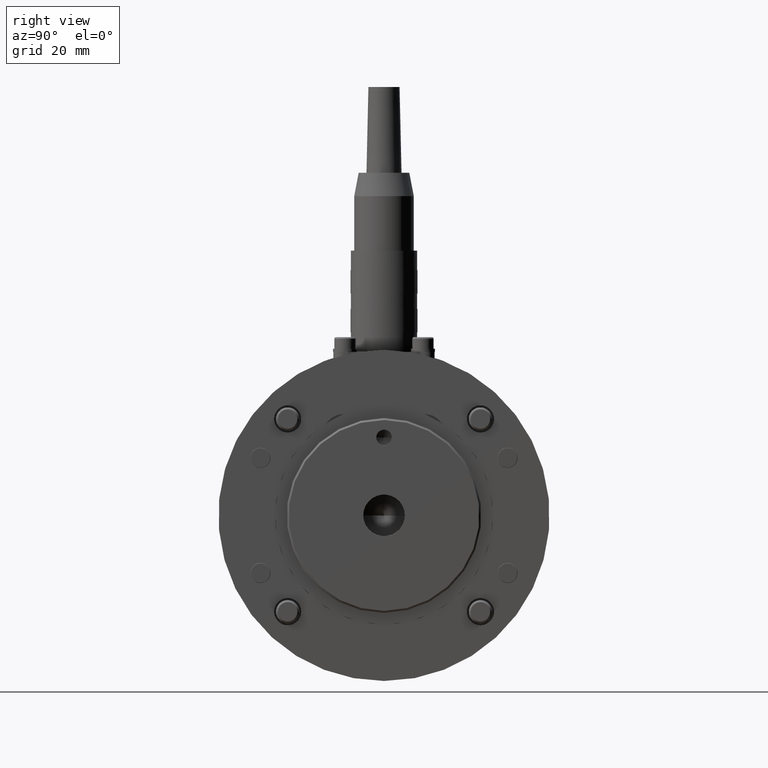
[diagram: clean part render]
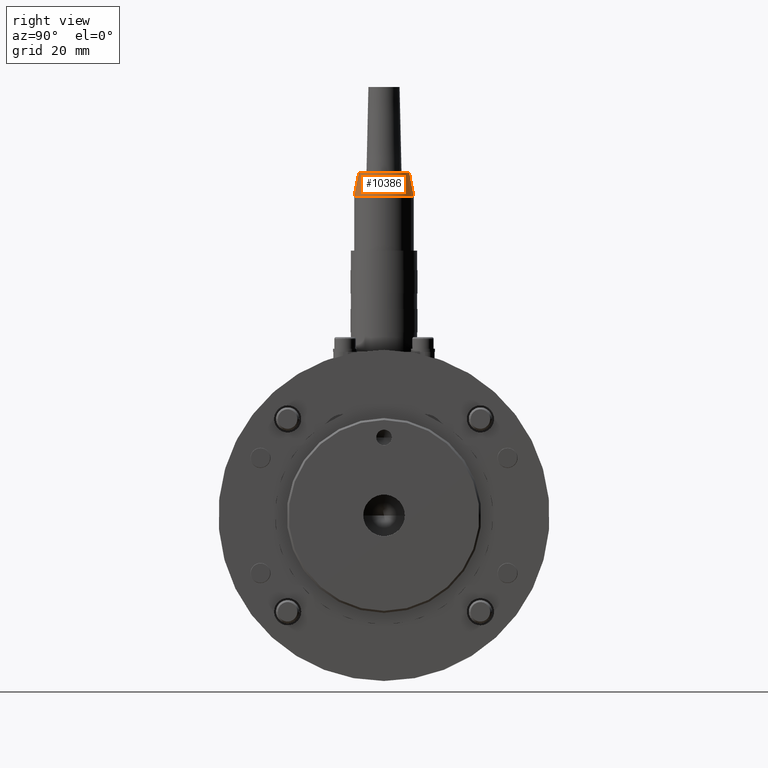
[diagram: same view with one face highlighted and labeled with its STEP entity id]
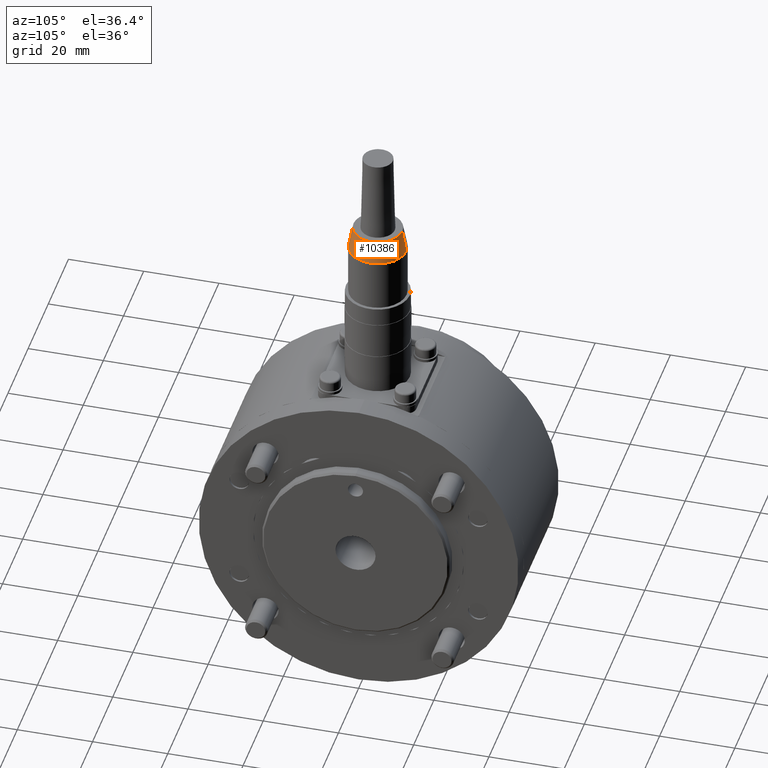
[diagram: same view with one face highlighted and labeled with its STEP entity id]
A machine part, right view. The second image highlights one B-rep face of the part: STEP entity #10386.
A second angle (auxiliary view) of the same face is appended — the face is thin or edge-on in the first view.
In plain terms, the highlighted conical surface has half-angle 10.85 deg.
Its self-contained STEP definition (entity closure, byte-faithful):
#10216=CARTESIAN_POINT('',(78.0,57.649999999999991,0.0));
#10217=VERTEX_POINT('',#10216);
#10233=CARTESIAN_POINT('',(78.0,42.349999999999994,-9.368239E-016));
#10234=VERTEX_POINT('',#10233);
#10256=CARTESIAN_POINT('',(72.0,56.500000000000000,0.0));
#10257=VERTEX_POINT('',#10256);
#10258=CARTESIAN_POINT('',(78.0,57.649999999999991,0.0));
#10259=DIRECTION('',(-0.982123011927037,-0.188240243952681,0.0));
#10260=VECTOR('',#10259,6.109214352107805);
#10261=LINE('',#10258,#10260);
#10262=EDGE_CURVE('',#10217,#10257,#10261,.T.);
#10265=CARTESIAN_POINT('',(72.0,43.499999999999986,-7.959941E-016));
#10266=VERTEX_POINT('',#10265);
#10267=CARTESIAN_POINT('',(78.0,42.349999999999994,-9.368239E-016));
#10268=DIRECTION('',(-0.982123011927037,0.188240243952681,2.305202E-017));
#10269=VECTOR('',#10268,6.109214352107805);
#10270=LINE('',#10267,#10269);
#10271=EDGE_CURVE('',#10234,#10266,#10270,.T.);
#10354=CARTESIAN_POINT('',(72.0,49.999999999999993,0.0));
#10355=DIRECTION('',(1.0,0.0,0.0));
#10356=DIRECTION('',(0.0,1.0,0.0));
#10357=AXIS2_PLACEMENT_3D('',#10354,#10355,#10356);
#10358=CIRCLE('',#10357,6.500000000000007);
#10359=EDGE_CURVE('',#10257,#10266,#10358,.T.);
#10369=CARTESIAN_POINT('',(75.0,49.999999999999993,0.0));
#10370=DIRECTION('',(1.0,0.0,0.0));
#10371=DIRECTION('',(0.0,1.0,0.0));
#10372=AXIS2_PLACEMENT_3D('',#10369,#10370,#10371);
#10373=CONICAL_SURFACE('',#10372,7.075000000000003,10.850104629797299);
#10374=ORIENTED_EDGE('',*,*,#10262,.T.);
#10375=ORIENTED_EDGE('',*,*,#10359,.T.);
#10376=ORIENTED_EDGE('',*,*,#10271,.F.);
#10377=CARTESIAN_POINT('',(78.0,49.999999999999993,0.0));
#10378=DIRECTION('',(1.0,0.0,0.0));
#10379=DIRECTION('',(0.0,1.0,0.0));
#10380=AXIS2_PLACEMENT_3D('',#10377,#10378,#10379);
#10381=CIRCLE('',#10380,7.649999999999999);
#10382=EDGE_CURVE('',#10217,#10234,#10381,.T.);
#10383=ORIENTED_EDGE('',*,*,#10382,.F.);
#10384=EDGE_LOOP('',(#10374,#10375,#10376,#10383));
#10385=FACE_OUTER_BOUND('',#10384,.T.);
#10386=ADVANCED_FACE('',(#10385),#10373,.T.);